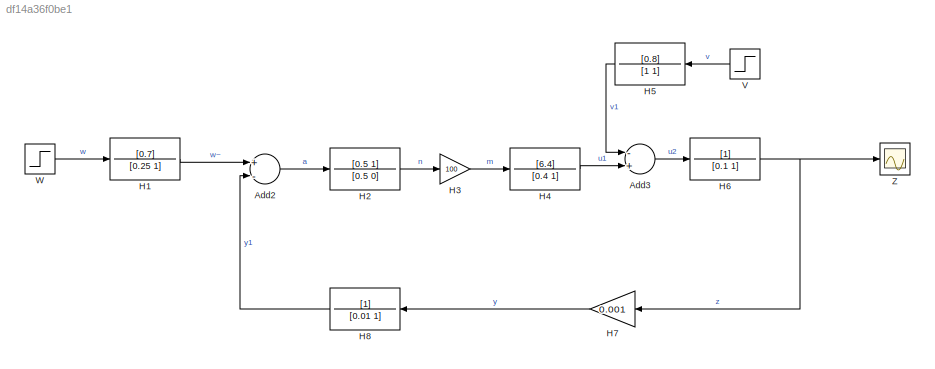
MODEL slx_df14a36f0be1
KIND model
CONFIG AbsTol = auto
CONFIG EnableMultiTasking = off
CONFIG FixedStep = auto
CONFIG MaxStep = auto
CONFIG MinStep = auto
CONFIG RelTol = 1e-3
CONFIG SampleTimeConstraint = Unconstrained
CONFIG Solver = VariableStepAuto
CONFIG SolverName = VariableStepAuto
CONFIG StartTime = 0.0
CONFIG StopTime = 10.0
BLOCK [Sum] Add2
  InputSameDT = off
  Inputs = +-
  OutDataTypeStr = Inherit: Inherit via internal rule
  Ports = [2, 1]
  SaturateOnIntegerOverflow = off
BLOCK [Sum] Add3
  InputSameDT = off
  Inputs = -+
  OutDataTypeStr = Inherit: Inherit via internal rule
  Ports = [2, 1]
  SaturateOnIntegerOverflow = off
BLOCK [TransferFcn] H1
  Denominator = [0.25 1]
  Numerator = [0.7]
BLOCK [TransferFcn] H2
  Denominator = [0.5 0]
  Numerator = [0.5 1]
BLOCK [Gain] H3
  Gain = 100
  OutDataTypeStr = Inherit: Inherit via internal rule
  ParamDataTypeStr = Inherit: Inherit via internal rule
  SaturateOnIntegerOverflow = off
BLOCK [TransferFcn] H4
  Denominator = [0.4 1]
  Numerator = [6.4]
BLOCK [TransferFcn] H5
  Denominator = [1 1]
  Numerator = [0.8]
BLOCK [TransferFcn] H6
  Denominator = [0.1 1]
BLOCK [Gain] H7
  Gain = 0.001
  OutDataTypeStr = Inherit: Inherit via internal rule
  ParamDataTypeStr = Inherit: Inherit via internal rule
  SaturateOnIntegerOverflow = off
BLOCK [TransferFcn] H8
  Denominator = [0.01 1]
BLOCK [Step] V
  After = 1250
  SampleTime = 0
  Time = 0
BLOCK [Step] W
  After = 10
  SampleTime = 0
  Time = 0
BLOCK [Scope] Z
  Floating = off
  NumInputPorts = 1
  Ports = [1]
  ScopeSpecificationString = Simulink.scopes.TimeScopeBlockCfg('CurrentConfiguration', extmgr.ConfigurationSet(extmgr.Configuration('Core','General UI',true),extmgr.Configuration('Core','Source UI',true),extmgr.Configuration('Sources','WiredSimulink',true,'DataLoggingVariableName','ScopeData2'),extmgr.Configuration('Visuals','Time Domain',true,'SerializedDisplays',{struct('MinYLimReal','-875.00000','MaxYLimReal','7874.99996',...<+1420ch>
LINE Add2:1 -> H2:1
LINE Add3:1 -> H6:1
LINE H1:1 -> Add2:1
LINE H2:1 -> H3:1
LINE H3:1 -> H4:1
LINE H4:1 -> Add3:2
LINE H5:1 -> Add3:1
NET H6:1 -> H7:1, Z:1
LINE H7:1 -> H8:1
LINE H8:1 -> Add2:2
LINE V:1 -> H5:1
LINE W:1 -> H1:1
note: NET lines group one-source signal fan-out (src -> all destinations, sorted); 1:1 wires keep LINE
